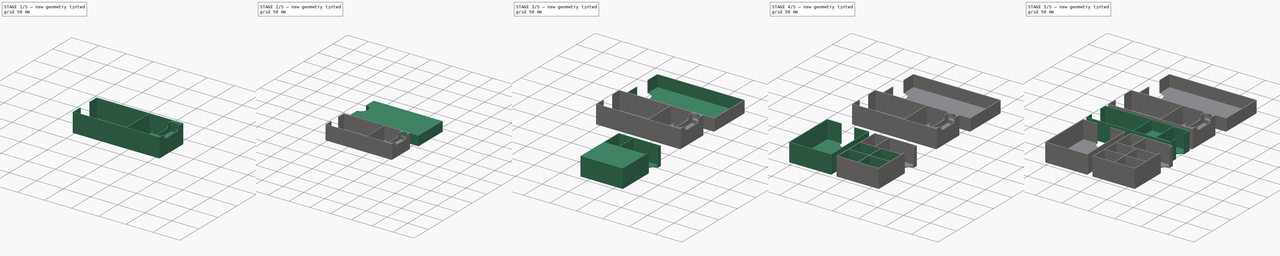
[diagram: build sequence overview — one tinted view per stage of 5, left to right]
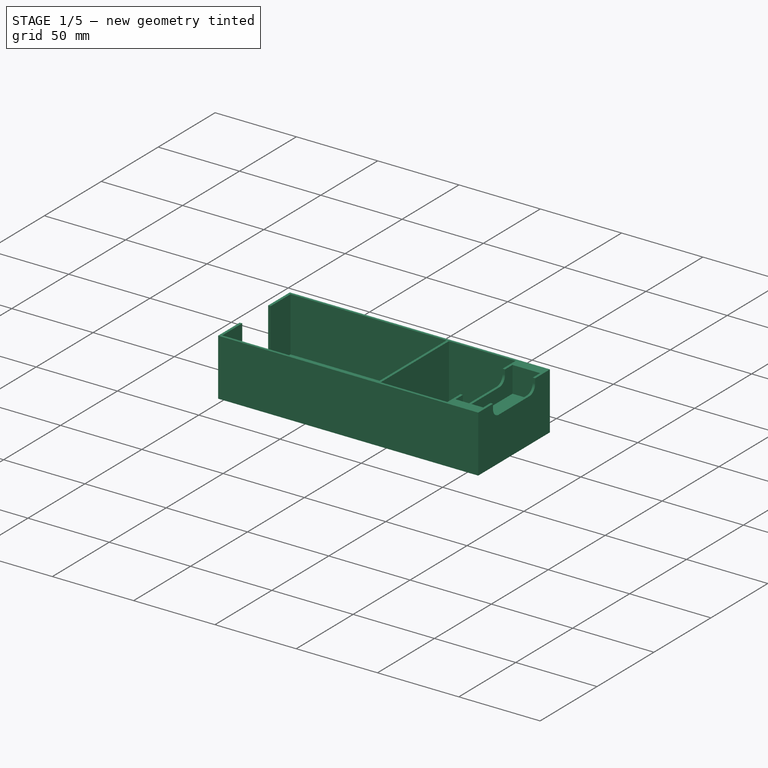
[diagram: stage 1 of 5 — iso view after this stage's code; geometry added in this stage tinted green]
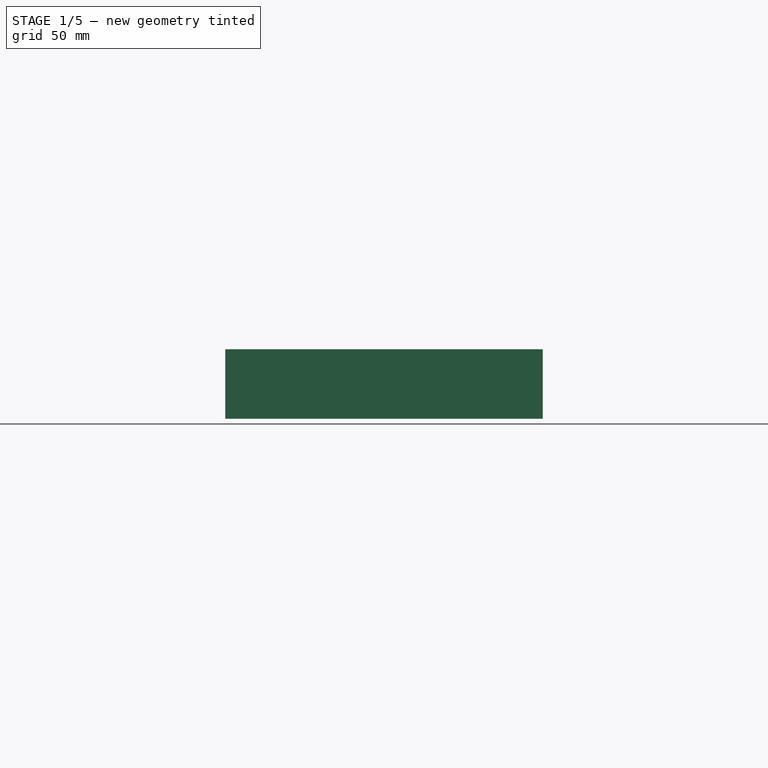
[diagram: stage 1 of 5 — front view after this stage's code; geometry added in this stage tinted green]
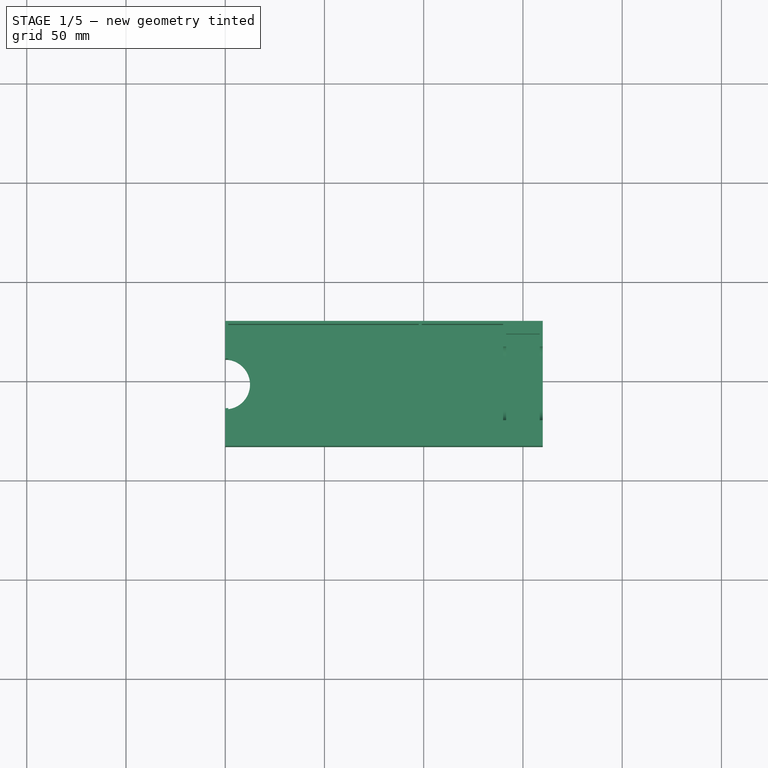
[diagram: stage 1 of 5 — top view after this stage's code; geometry added in this stage tinted green]
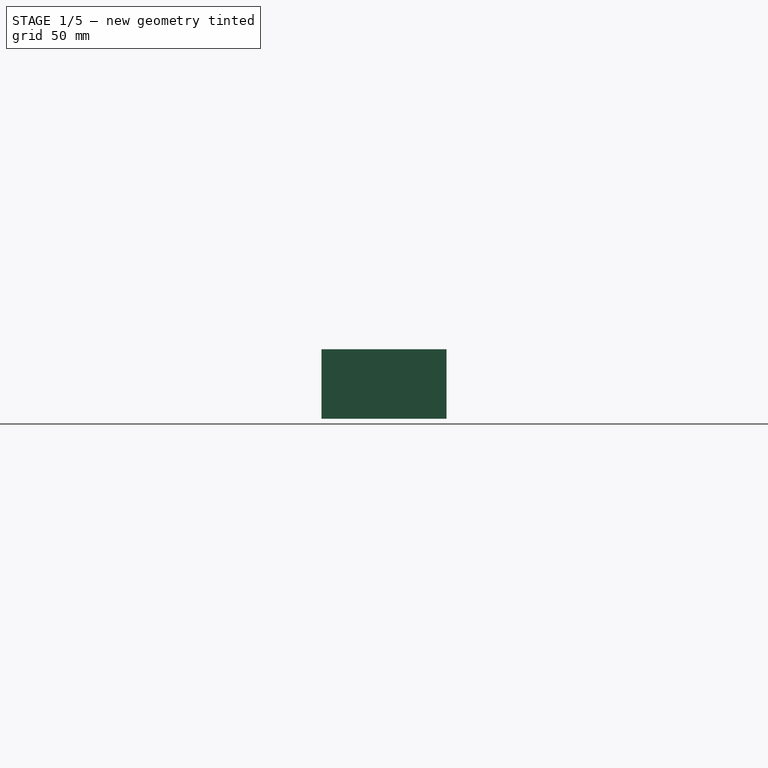
[diagram: stage 1 of 5 — right view after this stage's code; geometry added in this stage tinted green]
FCSTD DOCUMENT  (FreeCAD 0.20R29177 +426 (Git))
Label: Lets Waltz Inserts
License: All rights reserved
LicenseURL: http://en.wikipedia.org/wiki/All_rights_reserved
objects: Sketcher::SketchObject×16, PartDesign::Pocket×13, PartDesign::Fillet×9, PartDesign::Pad×5, PartDesign::Body×5, PartDesign::SubShapeBinder×3, Spreadsheet::Sheet×1
note: 78 computed .brp shape members not serialized (recipe doc carries the construction recipe); baked Part::Feature solids carry a one-line shape summary decoded from their .brp

FEATURE [Sketcher::SketchObject] Sketch003
  FullyConstrained = true
  MapMode = 5
  Support = -> [XY_Plane001]
  expr: Constraints[11] = 60mm + Spreadsheet.wall * 2
  sketch-geometry (6):
    g0: LineSegment StartX=3.8e-15 StartY=-20 StartZ=0 EndX=160 EndY=-20 EndZ=0
    g1: LineSegment StartX=160 StartY=-20 StartZ=0 EndX=160 EndY=-83 EndZ=0
    g2: LineSegment StartX=160 StartY=-83 StartZ=0 EndX=0 EndY=-83 EndZ=0
    g3: LineSegment StartX=3.8e-15 StartY=-83 StartZ=0 EndX=3.8e-15 EndY=-64 EndZ=0
    g4: ArcOfCircle CenterX=0 CenterY=-51.5 CenterZ=0 NormalX=0 NormalY=0 NormalZ=1 AngleXU=0 Radius=12.5 StartAngle=4.71239 EndAngle=7.85398
    g5: LineSegment StartX=3.8e-15 StartY=-39 StartZ=0 EndX=3.8e-15 EndY=-20 EndZ=0
  constraints (18):
    c: Coincident(g0,g1)
    c: Coincident(g1,g2)
    c: Coincident(g2,g3)
    c: Coincident(g5,g0)
    c: Horizontal(g0)
    c: Horizontal(g2)
    c: Vertical(g1)
    c: Vertical(g3)
    c: PointOnObject(g0,g-2)
    c: DistanceX(g2,g2) = 160
    c: DistanceY(g0,g-1) = 20
    c: DistanceY(g1,g1) = 63
    c: Symmetric(g0,g2,g4)
    c: DistanceY(g4,g4) = 25
    c: Coincident(g3,g4)
    c: Coincident(g5,g4)
    c: Vertical(g5)
    c: Vertical(g3,g4)
FEATURE [PartDesign::Pad] Pad001
  Direction = (0,0,1)
  Length = 35
  Length2 = 10
  Profile = -> Sketch003
  ReferenceAxis = -> Sketch003 [N_Axis]
  Type = 0
FEATURE [Sketcher::SketchObject] Sketch004
  ExternalGeometry = -> [Pad001]
  FullyConstrained = true
  MapMode = 5
  Placement = pos=(0,0,35) rot=(0,0,1;0rad)
  Support = -> [Pad001]
  expr: Constraints[10] = Spreadsheet.wall
  expr: Constraints[8] = Spreadsheet.wall
  expr: Constraints[9] = Spreadsheet.wall
  sketch-geometry (4):
    g0: LineSegment StartX=1.5 StartY=-21.5 StartZ=0 EndX=97.5 EndY=-21.5 EndZ=0
    g1: LineSegment StartX=97.5 StartY=-21.5 StartZ=0 EndX=97.5 EndY=-81.5 EndZ=0
    g2: LineSegment StartX=97.5 StartY=-81.5 StartZ=0 EndX=1.5 EndY=-81.5 EndZ=0
    g3: LineSegment StartX=1.5 StartY=-81.5 StartZ=0 EndX=1.5 EndY=-21.5 EndZ=0
  constraints (12):
    c: Coincident(g0,g1)
    c: Coincident(g1,g2)
    c: Coincident(g2,g3)
    c: Coincident(g3,g0)
    c: Horizontal(g0)
    c: Horizontal(g2)
    c: Vertical(g1)
    c: Vertical(g3)
    c: DistanceX(g-3,g0) = 1.5
    c: DistanceY(g0,g-3) = 1.5
    c: DistanceY(g-4,g2) = 1.5
    c: DistanceX(g0,g0) = 96
FEATURE [PartDesign::Pocket] Pocket002
  BaseFeature = -> Pad001
  Direction = (0,0,-1)
  Length = 33.5
  Length2 = 5
  Profile = -> Sketch004
  ReferenceAxis = -> Sketch004 [N_Axis]
  Type = 0
  expr: Length = Spreadsheet.boxdepth
FEATURE [Sketcher::SketchObject] Sketch005
  ExternalGeometry = -> [Pocket002]
  FullyConstrained = true
  MapMode = 5
  Placement = pos=(0,0,35) rot=(0,0,1;0rad)
  Support = -> [Pocket002]
  expr: Constraints[9] = Spreadsheet.wall
  sketch-geometry (6):
    g0: LineSegment StartX=141.5 StartY=-26.5 StartZ=0 EndX=158.5 EndY=-26.5 EndZ=0
    g1: LineSegment StartX=158.5 StartY=-26.5 StartZ=0 EndX=158.5 EndY=-76.5 EndZ=0
    g2: LineSegment StartX=158.5 StartY=-76.5 StartZ=0 EndX=141.5 EndY=-76.5 EndZ=0
    g3: LineSegment StartX=141.5 StartY=-76.5 StartZ=0 EndX=141.5 EndY=-26.5 EndZ=0
    g4: GeomPoint X=160 Y=-51.5 Z=0
    g5: GeomPoint X=158.5 Y=-51.5 Z=0
  constraints (14):
    c: Coincident(g0,g1)
    c: Coincident(g1,g2)
    c: Coincident(g2,g3)
    c: Coincident(g3,g0)
    c: Horizontal(g0)
    c: Horizontal(g2)
    c: Vertical(g1)
    c: Vertical(g3)
    c: DistanceX(g2,g2) = 17
    c: DistanceX(g1,g-3) = 1.5
    c: DistanceY(g1,g1) = 50
    c: Symmetric(g-3,g-3,g4)
    c: Symmetric(g0,g1,g5)
    c: Horizontal(g4,g5)
FEATURE [PartDesign::Pocket] Pocket003
  BaseFeature = -> Pocket002
  Direction = (0,0,-1)
  Length = 16
  Length2 = 5
  Profile = -> Sketch005
  ReferenceAxis = -> Sketch005 [N_Axis]
  Type = 0
FEATURE [Sketcher::SketchObject] Sketch006
  ExternalGeometry = -> [Pocket003]
  FullyConstrained = true
  MapMode = 5
  Placement = pos=(0,0,35) rot=(0,0,1;0rad)
  Support = -> [Pocket003]
  expr: Constraints[11] = Spreadsheet.divider
  expr: Constraints[8] = Spreadsheet.divider
  sketch-geometry (4):
    g0: LineSegment StartX=99 StartY=-21.5 StartZ=0 EndX=140 EndY=-21.5 EndZ=0
    g1: LineSegment StartX=140 StartY=-21.5 StartZ=0 EndX=140 EndY=-81.5 EndZ=0
    g2: LineSegment StartX=140 StartY=-81.5 StartZ=0 EndX=99 EndY=-81.5 EndZ=0
    g3: LineSegment StartX=99 StartY=-81.5 StartZ=0 EndX=99 EndY=-21.5 EndZ=0
  constraints (12):
    c: Coincident(g0,g1)
    c: Coincident(g1,g2)
    c: Coincident(g2,g3)
    c: Coincident(g3,g0)
    c: Horizontal(g0)
    c: Horizontal(g2)
    c: Vertical(g1)
    c: Vertical(g3)
    c: DistanceX(g-3,g0) = 1.5
    c: Horizontal(g0,g-3)
    c: Horizontal(g-3,g2)
    c: DistanceX(g0,g-4) = 1.5
FEATURE [PartDesign::Pocket] Pocket004
  BaseFeature = -> Pocket003
  Direction = (0,0,-1)
  Length = 33.5
  Length2 = 5
  Profile = -> Sketch006
  ReferenceAxis = -> Sketch006 [N_Axis]
  Type = 0
  expr: Length = Spreadsheet.boxdepth
FEATURE [Sketcher::SketchObject] Sketch007
  ExternalGeometry = -> [Pocket004]
  FullyConstrained = true
  MapMode = 5
  Placement = pos=(160,0,0) rot=(0.57735,0.57735,0.57735;2.0944rad)
  Support = -> [Pocket004]
  sketch-geometry (6):
    g0: LineSegment StartX=-70 StartY=35 StartZ=0 EndX=-33 EndY=35 EndZ=0
    g1: LineSegment StartX=-33 StartY=35 StartZ=0 EndX=-33 EndY=32 EndZ=0
    g2: LineSegment StartX=-38 StartY=27 StartZ=0 EndX=-65 EndY=27 EndZ=0
    g3: LineSegment StartX=-70 StartY=32 StartZ=0 EndX=-70 EndY=35 EndZ=0
    g4: ArcOfCircle CenterX=-65 CenterY=32 CenterZ=0 NormalX=0 NormalY=0 NormalZ=1 AngleXU=0 Radius=5 StartAngle=3.14159 EndAngle=4.71239
    g5: ArcOfCircle CenterX=-38 CenterY=32 CenterZ=0 NormalX=0 NormalY=0 NormalZ=1 AngleXU=0 Radius=5 StartAngle=4.71239 EndAngle=6.28319
  constraints (16):
    c: Coincident(g0,g1)
    c: Coincident(g3,g0)
    c: Horizontal(g0)
    c: Horizontal(g2)
    c: Vertical(g1)
    c: Vertical(g3)
    c: PointOnObject(g0,g-3)
    c: Tangent(g2,g4) = 1.5708
    c: Tangent(g3,g4) = 1.5708
    c: Tangent(g1,g5) = 1.5708
    c: Tangent(g2,g5) = 1.5708
    c: Radius(g5) = 5
    c: Equal(g5,g4)
    c: DistanceY(g2,g0) = 8
    c: DistanceX(g0,g-3) = 13
    c: DistanceX(g-3,g0) = 13
FEATURE [PartDesign::Pocket] Pocket005
  BaseFeature = -> Pocket004
  Direction = (-1,0,0)
  Length = 25
  Length2 = 5
  Profile = -> Sketch007
  ReferenceAxis = -> Sketch007 [N_Axis]
  Type = 0
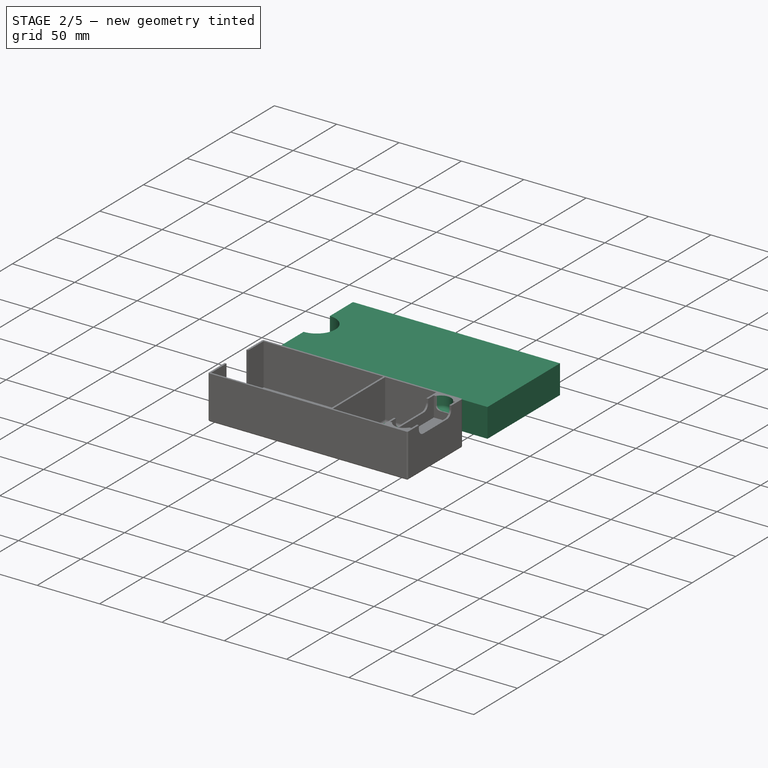
[diagram: stage 2 of 5 — iso view after this stage's code; geometry added in this stage tinted green]
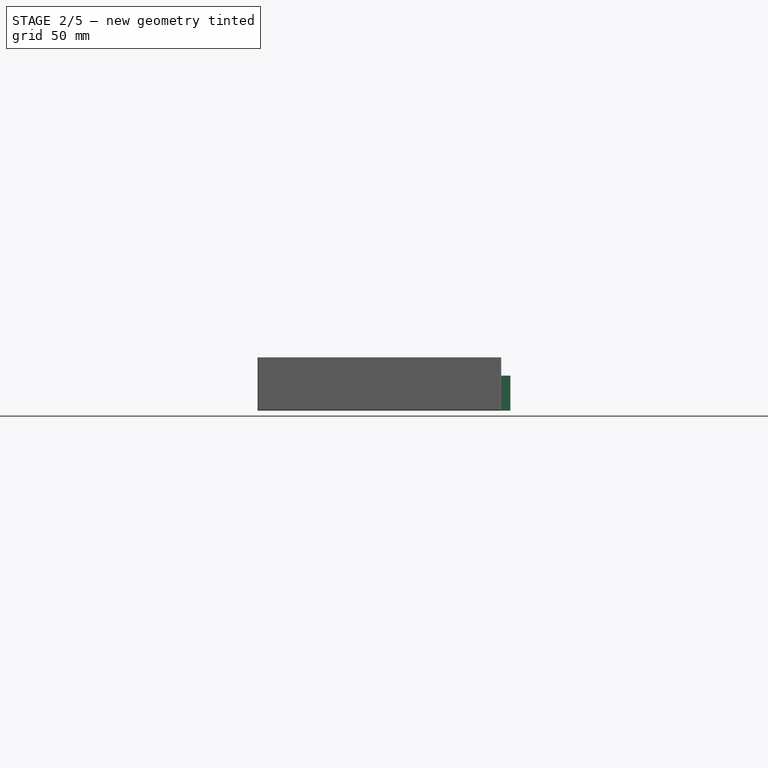
[diagram: stage 2 of 5 — front view after this stage's code; geometry added in this stage tinted green]
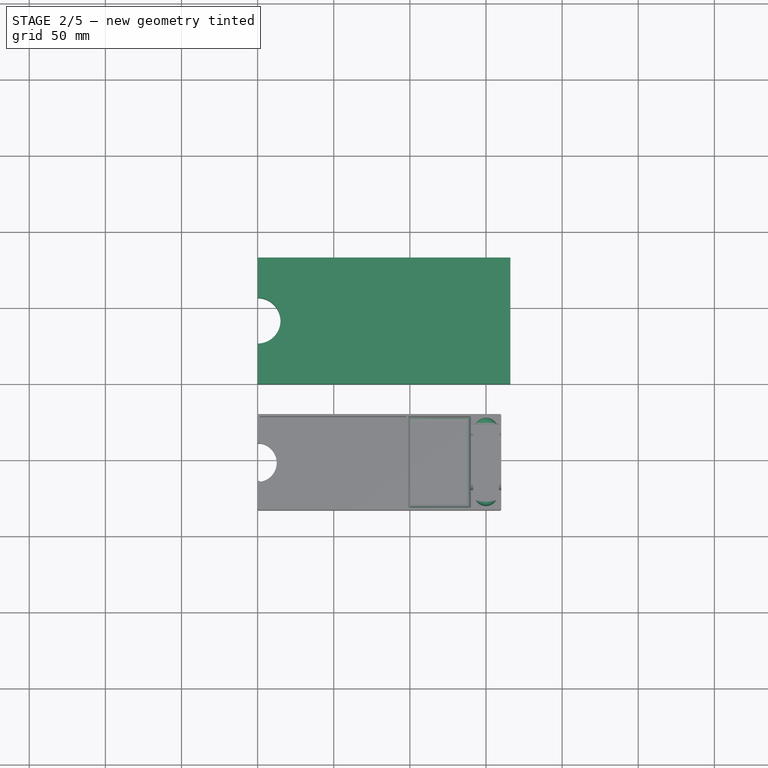
[diagram: stage 2 of 5 — top view after this stage's code; geometry added in this stage tinted green]
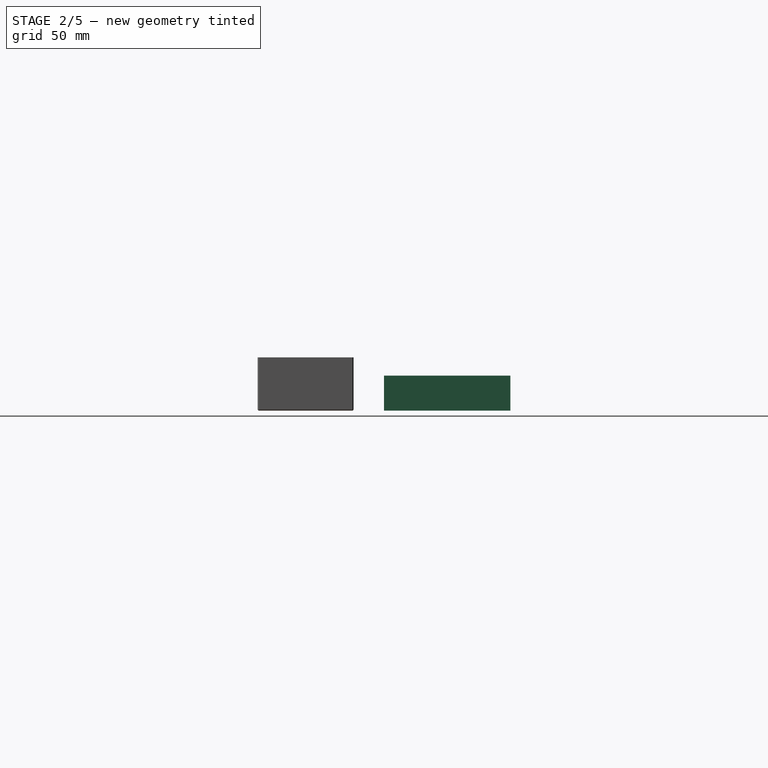
[diagram: stage 2 of 5 — right view after this stage's code; geometry added in this stage tinted green]
FEATURE [Sketcher::SketchObject] Sketch
  FullyConstrained = true
  MapMode = 5
  Support = -> [XY_Plane]
  expr: Constraints[10] = 80mm + Spreadsheet.wall * 2
  expr: Constraints[9] = 163mm + Spreadsheet.wall * 2
  sketch-geometry (4):
    g0: LineSegment StartX=0 StartY=0 StartZ=0 EndX=166 EndY=0 EndZ=0
    g1: LineSegment StartX=166 StartY=0 StartZ=0 EndX=166 EndY=83 EndZ=0
    g2: LineSegment StartX=166 StartY=83 StartZ=0 EndX=0 EndY=83 EndZ=0
    g3: LineSegment StartX=0 StartY=83 StartZ=0 EndX=0 EndY=0 EndZ=0
  constraints (11):
    c: Coincident(g0,g1)
    c: Coincident(g1,g2)
    c: Coincident(g2,g3)
    c: Coincident(g3,g0)
    c: Horizontal(g0)
    c: Horizontal(g2)
    c: Vertical(g1)
    c: Vertical(g3)
    c: Coincident(g-1,g0)
    c: DistanceX(g0,g0) = 166
    c: DistanceY(g1,g1) = 83
FEATURE [PartDesign::Pad] Pad
  Direction = (0,0,1)
  Length = 23
  Length2 = 10
  Profile = -> Sketch
  ReferenceAxis = -> Sketch [N_Axis]
  Type = 0
  expr: Length = Spreadsheet.boxheight - 12mm
FEATURE [Sketcher::SketchObject] Sketch001
  ExternalGeometry = -> [Pad]
  FullyConstrained = true
  MapMode = 5
  Placement = pos=(0,0,23) rot=(0,0,1;0rad)
  Support = -> [Pad]
  sketch-geometry (2):
    g0: ArcOfCircle CenterX=0 CenterY=41.5 CenterZ=0 NormalX=0 NormalY=0 NormalZ=1 AngleXU=0 Radius=15 StartAngle=4.71239 EndAngle=7.85398
    g1: LineSegment StartX=4.6e-15 StartY=56.5 StartZ=0 EndX=-2.8e-15 EndY=26.5 EndZ=0
  constraints (6):
    c: PointOnObject(g0,g-3)
    c: PointOnObject(g0,g-3)
    c: Coincident(g1,g0)
    c: Coincident(g1,g0)
    c: Symmetric(g-3,g-3,g0)
    c: DistanceY(g1,g1) = 30
FEATURE [PartDesign::Pocket] Pocket
  BaseFeature = -> Pad
  Direction = (0,0,-1)
  Length = 25
  Length2 = 5
  Profile = -> Sketch001
  ReferenceAxis = -> Sketch001 [N_Axis]
  Type = 0
FEATURE [Sketcher::SketchObject] Sketch008
  ExternalGeometry = -> [Pocket005]
  FullyConstrained = true
  MapMode = 5
  Placement = pos=(0,0,35) rot=(0,0,1;0rad)
  Support = -> [Pocket005]
  sketch-geometry (5):
    g0: ArcOfCircle CenterX=150 CenterY=-30.5 CenterZ=0 NormalX=0 NormalY=0 NormalZ=1 AngleXU=0 Radius=8 StartAngle=0.523599 EndAngle=2.61799
    g1: ArcOfCircle CenterX=150 CenterY=-72.5 CenterZ=0 NormalX=0 NormalY=0 NormalZ=1 AngleXU=0 Radius=8 StartAngle=3.66519 EndAngle=5.75959
    g2: LineSegment StartX=143.072 StartY=-26.5 StartZ=0 EndX=156.928 EndY=-26.5 EndZ=0
    g3: LineSegment StartX=143.072 StartY=-76.5 StartZ=0 EndX=156.928 EndY=-76.5 EndZ=0
    g4: GeomPoint X=150 Y=-26.5 Z=0
  constraints (15):
    c: PointOnObject(g0,g-3)
    c: PointOnObject(g1,g-4)
    c: PointOnObject(g1,g-4)
    c: Equal(g0,g1)
    c: PointOnObject(g0,g-3)
    c: Radius(g1) = 8
    c: Vertical(g0,g1)
    c: DistanceY(g1,g1) = 4
    c: Coincident(g2,g0)
    c: Coincident(g3,g1)
    c: Coincident(g3,g1)
    c: Coincident(g2,g0)
    c: DistanceY(g0,g0) = 4
    c: Symmetric(g-3,g-3,g4)
    c: Vertical(g4,g0)
FEATURE [PartDesign::Pocket] Pocket006
  BaseFeature = -> Pocket005
  Direction = (0,0,-1)
  Length = 10
  Length2 = 5
  Profile = -> Sketch008
  ReferenceAxis = -> Sketch008 [N_Axis]
  Type = 0
FEATURE [PartDesign::Body] Body  label="Ballrooms"
  Group = -> [Sketch,Pad,Sketch001,Pocket,Sketch016,Pocket013,Fillet]
  Origin = -> Origin
  Tip = -> Fillet
FEATURE [PartDesign::Fillet] Fillet001
  Base = -> Pocket006 [Edge97,Edge70]
  BaseFeature = -> Pocket006
  Radius = 3
  SupportTransform = false
  UseAllEdges = false
FEATURE [PartDesign::Fillet] Fillet002
  Base = -> Fillet001 [Edge59,Edge62,Edge61,Edge91,Edge58,Edge109,Edge94,Edge92,Edge60]
  BaseFeature = -> Fillet001
  Radius = 1
  SupportTransform = false
  UseAllEdges = false
FEATURE [PartDesign::Fillet] Fillet005
  Base = -> Fillet002 [Face48]
  BaseFeature = -> Fillet002
  Radius = 3
  SupportTransform = false
  UseAllEdges = false
FEATURE [PartDesign::Body] Body001  label="Solo"
  Group = -> [Sketch003,Pad001,Sketch004,Pocket002,Sketch005,Pocket003,Sketch006,Pocket004,Sketch007,Pocket005,Sketch008,Pocket006,Fillet001,Fillet002,Fillet005]
  Origin = -> Origin001
  Tip = -> Fillet005
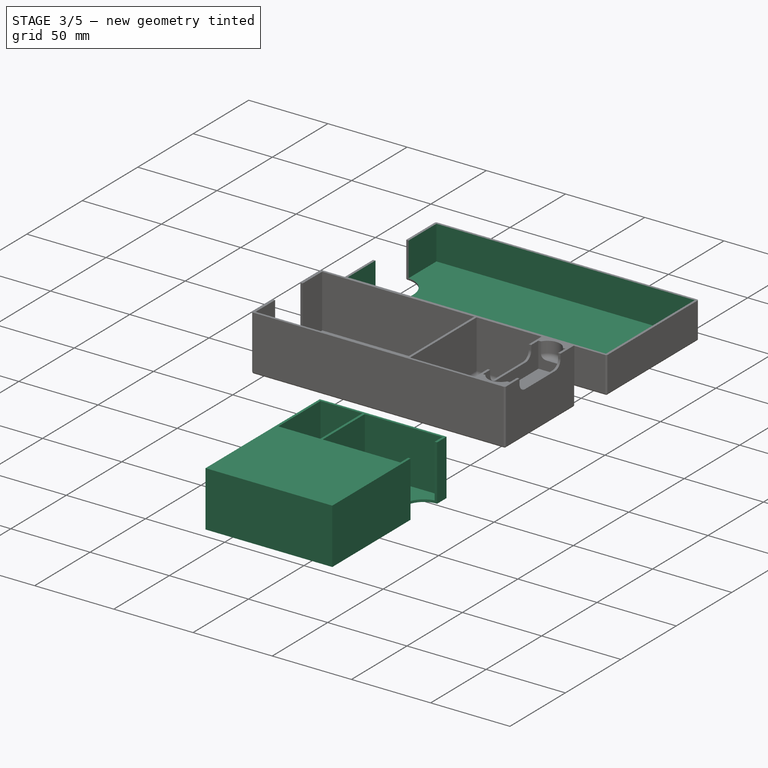
[diagram: stage 3 of 5 — iso view after this stage's code; geometry added in this stage tinted green]
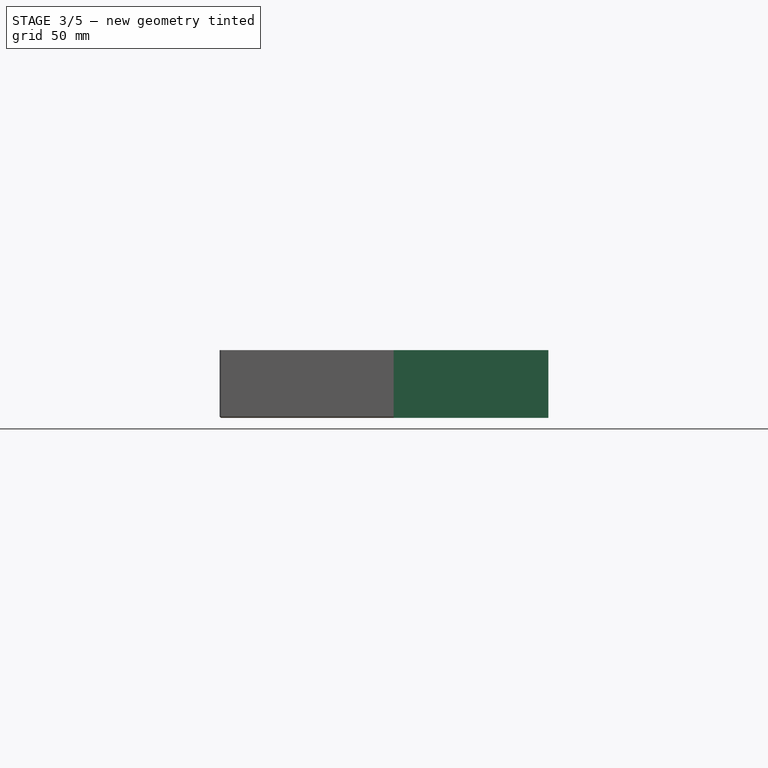
[diagram: stage 3 of 5 — front view after this stage's code; geometry added in this stage tinted green]
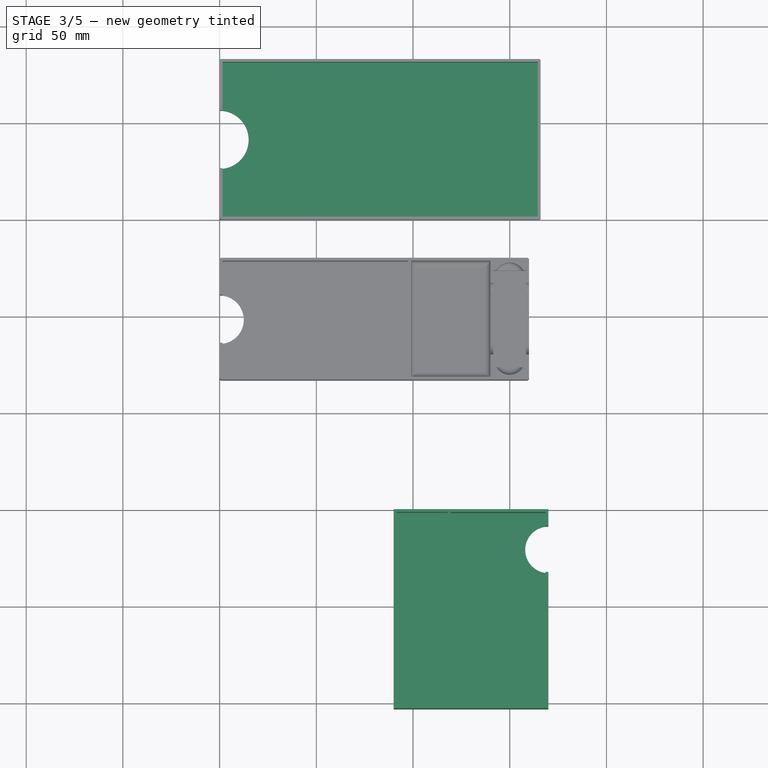
[diagram: stage 3 of 5 — top view after this stage's code; geometry added in this stage tinted green]
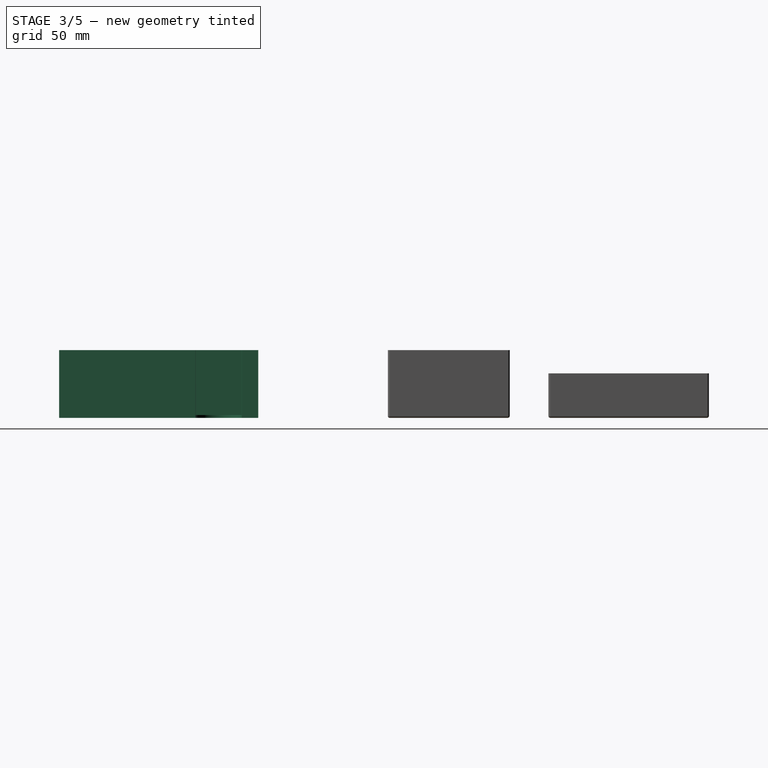
[diagram: stage 3 of 5 — right view after this stage's code; geometry added in this stage tinted green]
FEATURE [Sketcher::SketchObject] Sketch014
  FullyConstrained = true
  MapMode = 5
  Support = -> [XY_Plane004]
  expr: Constraints[18] = 38mm / 2 + Spreadsheet.wall
  expr: Constraints[8] = 160mm - 77mm - Spreadsheet.wall * 2
  expr: Constraints[9] = 100mm + Spreadsheet.wall * 2
  sketch-geometry (6):
    g0: LineSegment StartX=90 StartY=-150 StartZ=0 EndX=170 EndY=-150 EndZ=0
    g1: LineSegment StartX=170 StartY=-150 StartZ=0 EndX=170 EndY=-158.5 EndZ=0
    g2: LineSegment StartX=170 StartY=-253 StartZ=0 EndX=90 EndY=-253 EndZ=0
    g3: LineSegment StartX=90 StartY=-253 StartZ=0 EndX=90 EndY=-150 EndZ=0
    g4: ArcOfCircle CenterX=170 CenterY=-170.5 CenterZ=0 NormalX=0 NormalY=0 NormalZ=1 AngleXU=0 Radius=12 StartAngle=1.5708 EndAngle=4.71239
    g5: LineSegment StartX=170 StartY=-182.5 StartZ=0 EndX=170 EndY=-253 EndZ=0
  constraints (19):
    c: Coincident(g0,g1)
    c: Coincident(g5,g2)
    c: Coincident(g2,g3)
    c: Coincident(g3,g0)
    c: Horizontal(g0)
    c: Horizontal(g2)
    c: Vertical(g1)
    c: Vertical(g3)
    c: DistanceX(g2,g2) = 80
    c: DistanceY(g5,g1) = 103
    c: DistanceY(g0,g-1) = 150
    c: DistanceX(g-1,g0) = 90
    c: PointOnObject(g4,g1)
    c: Coincident(g1,g4)
    c: Coincident(g5,g4)
    c: Vertical(g5)
    c: Vertical(g4,g1)
    c: DistanceY(g4,g1) = 24
    c: DistanceY(g4,g0) = 20.5
FEATURE [PartDesign::Pad] Pad004
  Direction = (0,0,1)
  Length = 35
  Length2 = 10
  Profile = -> Sketch014
  ReferenceAxis = -> Sketch014 [N_Axis]
  Type = 0
  expr: Length = Spreadsheet.boxheight
FEATURE [PartDesign::Body] Body003  label="Module 3"
  Group = -> [Sketch012,Pad003,Sketch013,Pocket009,Fillet006]
  Origin = -> Origin003
  Tip = -> Fillet006
FEATURE [Sketcher::SketchObject] Sketch015
  ExternalGeometry = -> [Pad004]
  FullyConstrained = true
  MapMode = 5
  Placement = pos=(0,0,35) rot=(0,0,1;0rad)
  Support = -> [Pad004]
  expr: Constraints[11] = Spreadsheet.wall
  expr: Constraints[22] = Spreadsheet.divider
  expr: Constraints[23] = Spreadsheet.wall
  expr: Constraints[56] = Spreadsheet.divider
  expr: Constraints[57] = Spreadsheet.wall
  expr: Constraints[58] = Spreadsheet.wall
  expr: Constraints[59] = Spreadsheet.wall
  expr: Constraints[60] = Spreadsheet.divider
  expr: Constraints[69] = Spreadsheet.divider
  expr: Constraints[8] = Spreadsheet.wall
  sketch-geometry (25):
    g0: LineSegment StartX=119.5 StartY=-151.5 StartZ=0 EndX=168.5 EndY=-151.5 EndZ=0
    g1: LineSegment StartX=168.5 StartY=-151.5 StartZ=0 EndX=168.5 EndY=-189.5 EndZ=0
    g2: LineSegment StartX=168.5 StartY=-189.5 StartZ=0 EndX=119.5 EndY=-189.5 EndZ=0
    g3: LineSegment StartX=119.5 StartY=-189.5 StartZ=0 EndX=119.5 EndY=-151.5 EndZ=0
    g4: LineSegment StartX=91.5 StartY=-151.5 StartZ=0 EndX=118 EndY=-151.5 EndZ=0
    g5: LineSegment StartX=118 StartY=-151.5 StartZ=0 EndX=118 EndY=-189.5 EndZ=0
    g6: LineSegment StartX=118 StartY=-189.5 StartZ=0 EndX=91.5 EndY=-189.5 EndZ=0
    g7: LineSegment StartX=91.5 StartY=-189.5 StartZ=0 EndX=91.5 EndY=-151.5 EndZ=0
    g8: LineSegment StartX=91.5 StartY=-191 StartZ=0 EndX=129.25 EndY=-191 EndZ=0
    g9: LineSegment StartX=129.25 StartY=-191 StartZ=0 EndX=129.25 EndY=-220.5 EndZ=0
    g10: LineSegment StartX=129.25 StartY=-220.5 StartZ=0 EndX=91.5 EndY=-220.5 EndZ=0
    g11: LineSegment StartX=91.5 StartY=-220.5 StartZ=0 EndX=91.5 EndY=-191 EndZ=0
    g12: LineSegment StartX=130.75 StartY=-191 StartZ=0 EndX=168.5 EndY=-191 EndZ=0
    g13: LineSegment StartX=168.5 StartY=-191 StartZ=0 EndX=168.5 EndY=-220.5 EndZ=0
    g14: LineSegment StartX=168.5 StartY=-220.5 StartZ=0 EndX=130.75 EndY=-220.5 EndZ=0
    g15: LineSegment StartX=130.75 StartY=-220.5 StartZ=0 EndX=130.75 EndY=-191 EndZ=0
    g16: LineSegment StartX=130.75 StartY=-222 StartZ=0 EndX=168.5 EndY=-222 EndZ=0
    g17: LineSegment StartX=168.5 StartY=-222 StartZ=0 EndX=168.5 EndY=-251.5 EndZ=0
    g18: LineSegment StartX=168.5 StartY=-251.5 StartZ=0 EndX=130.75 EndY=-251.5 EndZ=0
    g19: LineSegment StartX=130.75 StartY=-251.5 StartZ=0 EndX=130.75 EndY=-222 EndZ=0
    g20: LineSegment StartX=91.5 StartY=-222 StartZ=0 EndX=129.25 EndY=-222 EndZ=0
    g21: LineSegment StartX=129.25 StartY=-222 StartZ=0 EndX=129.25 EndY=-251.5 EndZ=0
    g22: LineSegment StartX=129.25 StartY=-251.5 StartZ=0 EndX=91.5 EndY=-251.5 EndZ=0
    g23: LineSegment StartX=91.5 StartY=-251.5 StartZ=0 EndX=91.5 EndY=-222 EndZ=0
    g24: GeomPoint X=130 Y=-221.25 Z=0
  constraints (72):
    c: Coincident(g0,g1)
    c: Coincident(g1,g2)
    c: Coincident(g2,g3)
    c: Coincident(g3,g0)
    c: Horizontal(g0)
    c: Horizontal(g2)
    c: Vertical(g1)
    c: Vertical(g3)
    c: DistanceX(g0,g-3) = 1.5
    c: DistanceX(g0,g0) = 49
    c: DistanceY(g1,g1) = 38
    c: DistanceY(g0,g-3) = 1.5
    c: Coincident(g4,g5)
    c: Coincident(g5,g6)
    c: Coincident(g6,g7)
    c: Coincident(g7,g4)
    c: Horizontal(g4)
    c: Horizontal(g6)
    c: Vertical(g5)
    c: Vertical(g7)
    c: Horizontal(g2,g5)
    c: Horizontal(g4,g0)
    c: DistanceX(g4,g0) = 1.5
    c: DistanceX(g-3,g4) = 1.5
    c: Coincident(g8,g9)
    c: Coincident(g9,g10)
    c: Coincident(g10,g11)
    c: Coincident(g11,g8)
    c: Horizontal(g8)
    c: Horizontal(g10)
    c: Vertical(g9)
    c: Vertical(g11)
    c: Coincident(g12,g13)
    c: Coincident(g13,g14)
    c: Coincident(g14,g15)
    c: Coincident(g15,g12)
    c: Horizontal(g12)
    c: Horizontal(g14)
    c: Vertical(g13)
    c: Vertical(g15)
    c: Coincident(g16,g17)
    c: Coincident(g17,g18)
    c: Coincident(g18,g19)
    c: Coincident(g19,g16)
    c: Horizontal(g16)
    c: Horizontal(g18)
    c: Vertical(g17)
    c: Vertical(g19)
    c: Coincident(g20,g21)
    c: Coincident(g21,g22)
    c: Coincident(g22,g23)
    c: Coincident(g23,g20)
    c: Horizontal(g20)
    c: Horizontal(g22)
    c: Vertical(g21)
    c: Vertical(g23)
    c: DistanceX(g21,g18) = 1.5
    c: DistanceX(g17,g-4) = 1.5
    c: DistanceX(g-4,g22) = 1.5
    c: DistanceY(g-4,g17) = 1.5
    c: DistanceY(g12,g1) = 1.5
    c: Horizontal(g18,g21)
    c: Horizontal(g16,g20)
    c: Horizontal(g14,g9)
    c: Horizontal(g8,g12)
    c: Vertical(g9,g20)
    c: Vertical(g14,g16)
    c: Vertical(g13,g16)
    c: Vertical(g10,g20)
    c: DistanceY(g16,g13) = 1.5
    c: Symmetric(g12,g22,g24)
    c: Symmetric(g20,g14,g24)
FEATURE [PartDesign::SubShapeBinder] Binder
  BindCopyOnChange = 0
  BindMode = 0
  ClaimChildren = false
  Context = -> Body004 [Binder.]
  Fuse = false
  MakeFace = true
  OffsetFill = false
  OffsetIntersection = false
  OffsetJoinType = 0
  OffsetOpenResult = false
  PartialLoad = false
  Relative = true
  Support = -> [Sketch015[Edge4,Edge3,Edge1,Edge2]]
  _Version = 2
FEATURE [PartDesign::Pocket] Pocket010
  BaseFeature = -> Pad004
  Direction = (0,0,-1)
  Length = 33.5
  Length2 = 5
  Profile = -> Binder
  Type = 0
  expr: Length = Spreadsheet.boxdepth
FEATURE [PartDesign::SubShapeBinder] Binder001
  BindCopyOnChange = 0
  BindMode = 0
  ClaimChildren = false
  Context = -> Body004 [Binder001.]
  Fuse = false
  MakeFace = true
  OffsetFill = false
  OffsetIntersection = false
  OffsetJoinType = 0
  OffsetOpenResult = false
  PartialLoad = false
  Relative = true
  Support = -> [Sketch015[Edge6,Edge5,Edge8,Edge7]]
  _Version = 2
FEATURE [PartDesign::Pocket] Pocket011
  BaseFeature = -> Pocket010
  Direction = (0,0,-1)
  Length = 25
  Length2 = 5
  Profile = -> Binder001
  Type = 0
FEATURE [PartDesign::Body] Body004  label="Module 1"
  Group = -> [Sketch014,Pad004,Sketch015,Binder,Pocket010,Binder001,Pocket011,Fillet007,Binder002,Pocket012,Fillet008]
  Origin = -> Origin004
  Tip = -> Fillet008
FEATURE [Spreadsheet::Sheet] Spreadsheet
  cells = A1=Wall; B1(wall)==1.5mm; A2=Divider; B2(divider)==1.5mm; A3=Floor; B3(floor)==1.5mm; A4=Box Height; B4(boxheight)==35mm; A5=Box Depth; B5(boxdepth)==boxheight - floor
FEATURE [Sketcher::SketchObject] Sketch016
  ExternalGeometry = -> [Pocket]
  FullyConstrained = true
  MapMode = 5
  Placement = pos=(0,0,23) rot=(0,0,1;0rad)
  Support = -> [Pocket]
  expr: Constraints[10] = Spreadsheet.wall
  expr: Constraints[11] = Spreadsheet.wall
  expr: Constraints[8] = Spreadsheet.wall
  expr: Constraints[9] = Spreadsheet.wall
  sketch-geometry (4):
    g0: LineSegment StartX=1.5 StartY=81.5 StartZ=0 EndX=164.5 EndY=81.5 EndZ=0
    g1: LineSegment StartX=164.5 StartY=81.5 StartZ=0 EndX=164.5 EndY=1.5 EndZ=0
    g2: LineSegment StartX=164.5 StartY=1.5 StartZ=0 EndX=1.5 EndY=1.5 EndZ=0
    g3: LineSegment StartX=1.5 StartY=1.5 StartZ=0 EndX=1.5 EndY=81.5 EndZ=0
  constraints (12):
    c: Coincident(g0,g1)
    c: Coincident(g1,g2)
    c: Coincident(g2,g3)
    c: Coincident(g3,g0)
    c: Horizontal(g0)
    c: Horizontal(g2)
    c: Vertical(g1)
    c: Vertical(g3)
    c: DistanceX(g1,g-4) = 1.5
    c: DistanceX(g-4,g2) = 1.5
    c: DistanceY(g-4,g1) = 1.5
    c: DistanceY(g0,g-3) = 1.5
FEATURE [PartDesign::Pocket] Pocket013
  BaseFeature = -> Pocket
  Direction = (0,0,-1)
  Length = 21.5
  Length2 = 5
  Profile = -> Sketch016
  ReferenceAxis = -> Sketch016 [N_Axis]
  Type = 0
  expr: Length = Spreadsheet.boxheight - Spreadsheet.floor - 12mm
FEATURE [PartDesign::Fillet] Fillet
  Base = -> Pocket013 [Face4,Edge1,Edge2,Edge27,Edge8]
  BaseFeature = -> Pocket013
  Radius = 1
  SupportTransform = false
  UseAllEdges = false
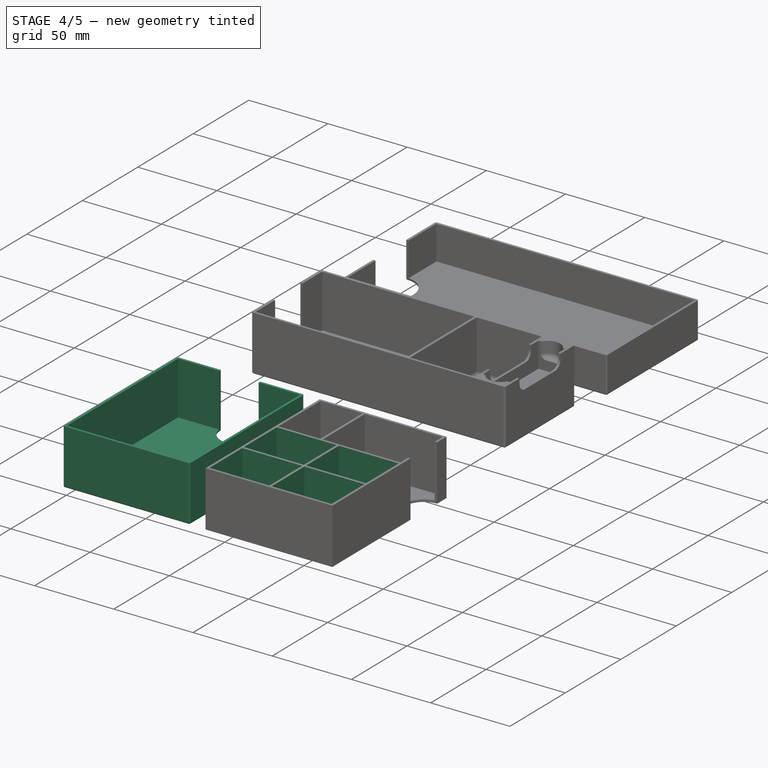
[diagram: stage 4 of 5 — iso view after this stage's code; geometry added in this stage tinted green]
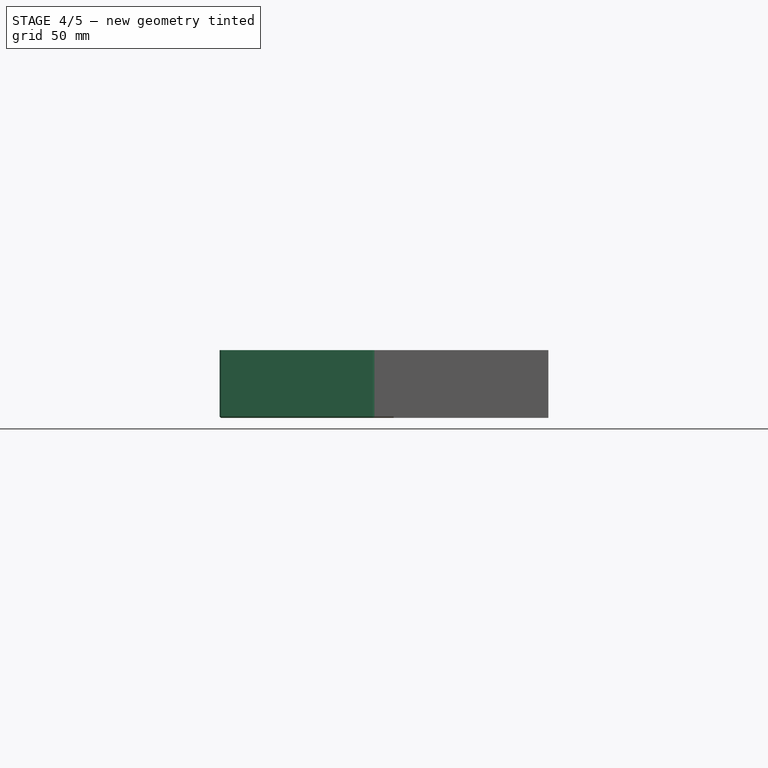
[diagram: stage 4 of 5 — front view after this stage's code; geometry added in this stage tinted green]
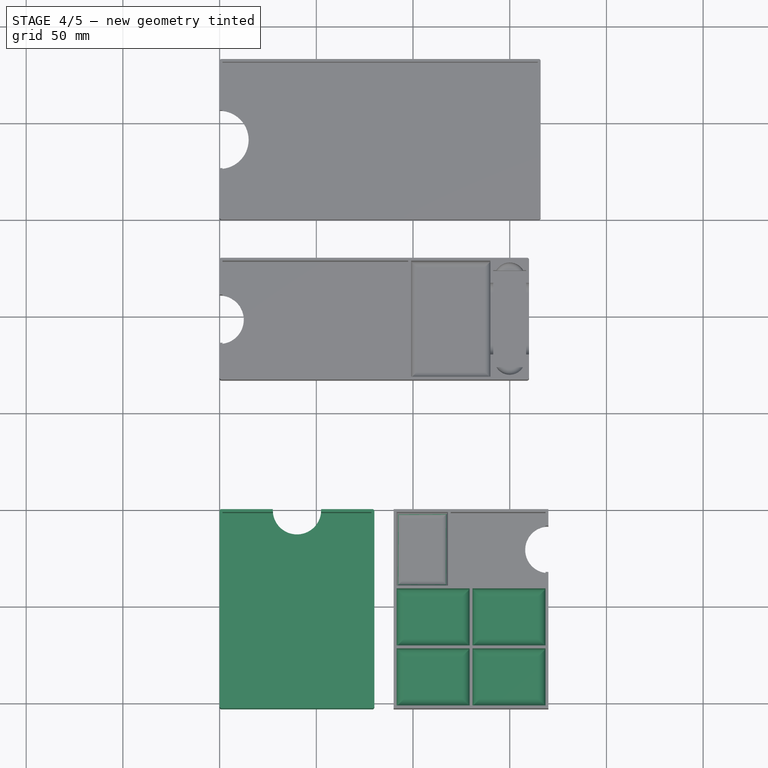
[diagram: stage 4 of 5 — top view after this stage's code; geometry added in this stage tinted green]
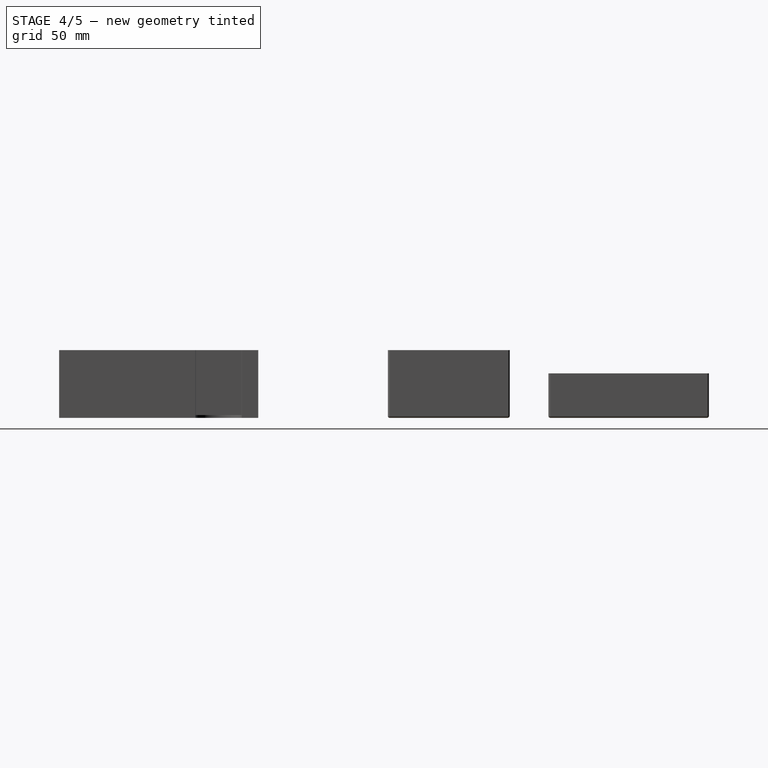
[diagram: stage 4 of 5 — right view after this stage's code; geometry added in this stage tinted green]
FEATURE [PartDesign::Body] Body002  label="Module 24"
  Group = -> [Sketch009,Pad002,Sketch010,Pocket007,Fillet003,Sketch011,Pocket008,Fillet004]
  Origin = -> Origin002
  Tip = -> Fillet004
FEATURE [Sketcher::SketchObject] Sketch012
  FullyConstrained = true
  MapMode = 5
  Support = -> [XY_Plane003]
  expr: Constraints[15] = 77mm + Spreadsheet.wall * 2
  expr: Constraints[16] = 100mm + Spreadsheet.wall * 2
  sketch-geometry (6):
    g0: LineSegment StartX=0 StartY=-150 StartZ=0 EndX=27.5 EndY=-150 EndZ=0
    g1: LineSegment StartX=80 StartY=-150 StartZ=0 EndX=80 EndY=-253 EndZ=0
    g2: LineSegment StartX=80 StartY=-253 StartZ=0 EndX=0 EndY=-253 EndZ=0
    g3: LineSegment StartX=0 StartY=-253 StartZ=0 EndX=0 EndY=-150 EndZ=0
    g4: ArcOfCircle CenterX=40 CenterY=-150 CenterZ=0 NormalX=0 NormalY=0 NormalZ=1 AngleXU=0 Radius=12.5 StartAngle=3.14159 EndAngle=6.28319
    g5: LineSegment StartX=52.5 StartY=-150 StartZ=0 EndX=80 EndY=-150 EndZ=0
  constraints (18):
    c: Coincident(g5,g1)
    c: Coincident(g1,g2)
    c: Coincident(g2,g3)
    c: Coincident(g3,g0)
    c: Horizontal(g0)
    c: Horizontal(g2)
    c: Vertical(g1)
    c: Vertical(g3)
    c: PointOnObject(g0,g-2)
    c: Symmetric(g5,g0,g4)
    c: DistanceX(g4,g4) = 25
    c: Coincident(g0,g4)
    c: Coincident(g5,g4)
    c: Horizontal(g5)
    c: Horizontal(g4,g0)
    c: DistanceX(g2,g2) = 80
    c: DistanceY(g1,g1) = 103
    c: DistanceY(g0,g-1) = 150
FEATURE [PartDesign::Pad] Pad003
  Direction = (0,0,1)
  Length = 35
  Length2 = 10
  Profile = -> Sketch012
  ReferenceAxis = -> Sketch012 [N_Axis]
  Type = 0
  expr: Length = Spreadsheet.boxheight
FEATURE [Sketcher::SketchObject] Sketch013
  ExternalGeometry = -> [Pad003]
  FullyConstrained = true
  MapMode = 5
  Placement = pos=(0,0,35) rot=(0,0,1;0rad)
  Support = -> [Pad003]
  expr: Constraints[10] = Spreadsheet.wall
  expr: Constraints[11] = Spreadsheet.wall
  expr: Constraints[8] = Spreadsheet.wall
  expr: Constraints[9] = Spreadsheet.wall
  sketch-geometry (4):
    g0: LineSegment StartX=1.5 StartY=-151.5 StartZ=0 EndX=78.5 EndY=-151.5 EndZ=0
    g1: LineSegment StartX=78.5 StartY=-151.5 StartZ=0 EndX=78.5 EndY=-251.5 EndZ=0
    g2: LineSegment StartX=78.5 StartY=-251.5 StartZ=0 EndX=1.5 EndY=-251.5 EndZ=0
    g3: LineSegment StartX=1.5 StartY=-251.5 StartZ=0 EndX=1.5 EndY=-151.5 EndZ=0
  constraints (12):
    c: Coincident(g0,g1)
    c: Coincident(g1,g2)
    c: Coincident(g2,g3)
    c: Coincident(g3,g0)
    c: Horizontal(g0)
    c: Horizontal(g2)
    c: Vertical(g1)
    c: Vertical(g3)
    c: DistanceX(g-3,g0) = 1.5
    c: DistanceX(g1,g-4) = 1.5
    c: DistanceY(g0,g-4) = 1.5
    c: DistanceY(g-4,g1) = 1.5
FEATURE [PartDesign::Pocket] Pocket009
  BaseFeature = -> Pad003
  Direction = (0,0,-1)
  Length = 33.5
  Length2 = 5
  Profile = -> Sketch013
  ReferenceAxis = -> Sketch013 [N_Axis]
  Type = 0
  expr: Length = Spreadsheet.boxdepth
FEATURE [PartDesign::Fillet] Fillet006
  Base = -> Pocket009 [Edge5,Edge1,Edge26,Edge27,Face4]
  BaseFeature = -> Pocket009
  Radius = 1
  SupportTransform = false
  UseAllEdges = false
FEATURE [PartDesign::Fillet] Fillet007
  Base = -> Pocket011 [Face19]
  BaseFeature = -> Pocket011
  Radius = 3
  SupportTransform = false
  UseAllEdges = false
FEATURE [PartDesign::SubShapeBinder] Binder002
  BindCopyOnChange = 0
  BindMode = 0
  ClaimChildren = false
  Context = -> Body004 [Binder002.]
  Fuse = false
  MakeFace = true
  OffsetFill = false
  OffsetIntersection = false
  OffsetJoinType = 0
  OffsetOpenResult = false
  PartialLoad = false
  Relative = true
  Support = -> [Sketch015[Edge22,Edge20,Edge17,Edge15,Edge16,Edge10,Edge11,Edge21]]
  _Version = 2
FEATURE [PartDesign::Pocket] Pocket012
  BaseFeature = -> Fillet007
  Direction = (0,0,-1)
  Length = 25
  Length2 = 5
  Profile = -> Binder002
  Type = 0
FEATURE [PartDesign::Fillet] Fillet008
  Base = -> Pocket012 [Face43,Face42,Face40,Face41]
  BaseFeature = -> Pocket012
  Radius = 4
  SupportTransform = false
  UseAllEdges = false
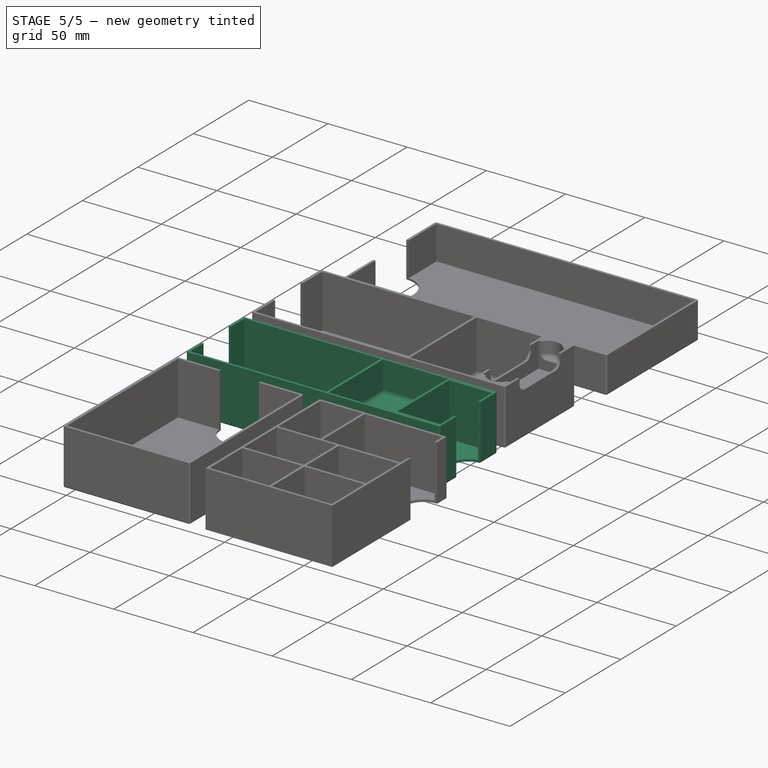
[diagram: stage 5 of 5 — iso view after this stage's code; geometry added in this stage tinted green]
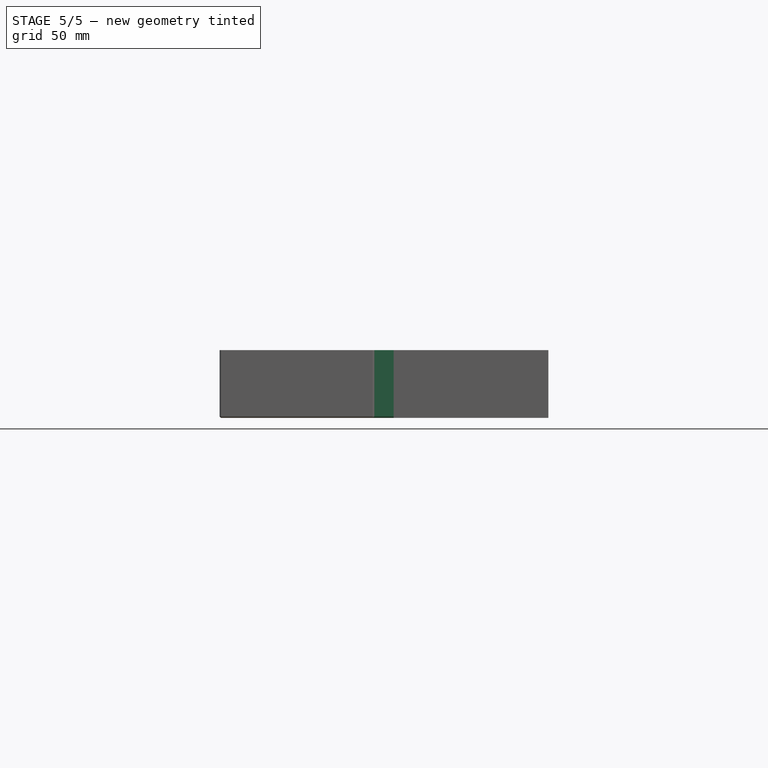
[diagram: stage 5 of 5 — front view after this stage's code; geometry added in this stage tinted green]
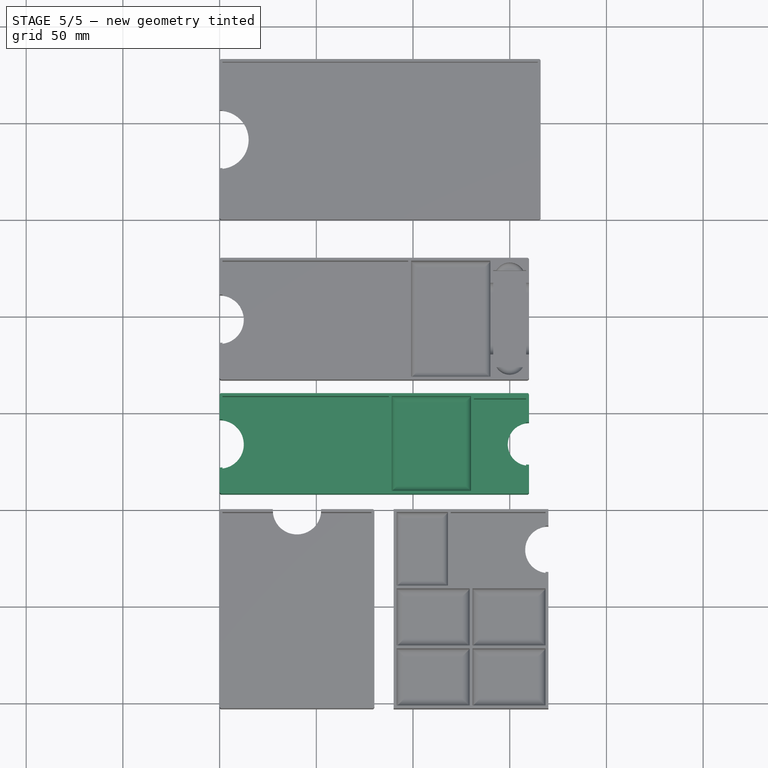
[diagram: stage 5 of 5 — top view after this stage's code; geometry added in this stage tinted green]
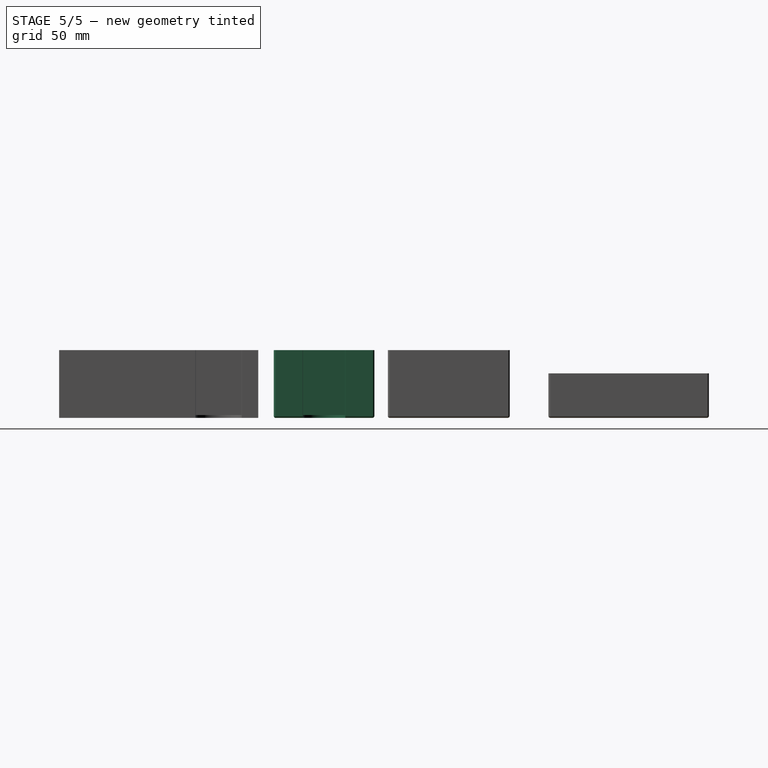
[diagram: stage 5 of 5 — right view after this stage's code; geometry added in this stage tinted green]
FEATURE [Sketcher::SketchObject] Sketch009
  FullyConstrained = true
  MapMode = 5
  Support = -> [XY_Plane002]
  expr: Constraints[9] = 49mm + Spreadsheet.wall * 2
  sketch-geometry (8):
    g0: LineSegment StartX=0 StartY=-90 StartZ=0 EndX=160 EndY=-90 EndZ=0
    g1: LineSegment StartX=160 StartY=-90 StartZ=0 EndX=160 EndY=-105 EndZ=0
    g2: LineSegment StartX=160 StartY=-142 StartZ=0 EndX=0 EndY=-142 EndZ=0
    g3: LineSegment StartX=0 StartY=-142 StartZ=0 EndX=0 EndY=-128.5 EndZ=0
    g4: ArcOfCircle CenterX=0 CenterY=-116 CenterZ=0 NormalX=0 NormalY=0 NormalZ=1 AngleXU=0 Radius=12.5 StartAngle=4.71239 EndAngle=7.85398
    g5: LineSegment StartX=0 StartY=-103.5 StartZ=0 EndX=0 EndY=-90 EndZ=0
    g6: ArcOfCircle CenterX=160 CenterY=-116 CenterZ=0 NormalX=0 NormalY=0 NormalZ=1 AngleXU=0 Radius=11 StartAngle=1.5708 EndAngle=4.71239
    g7: LineSegment StartX=160 StartY=-127 StartZ=0 EndX=160 EndY=-142 EndZ=0
  constraints (24):
    c: Coincident(g0,g1)
    c: Coincident(g7,g2)
    c: Coincident(g2,g3)
    c: Coincident(g5,g0)
    c: Horizontal(g0)
    c: Horizontal(g2)
    c: Vertical(g1)
    c: Vertical(g3)
    c: PointOnObject(g0,g-2)
    c: DistanceY(g7,g1) = 52
    c: DistanceX(g2,g2) = 160
    c: Symmetric(g0,g2,g4)
    c: DistanceY(g4,g4) = 25
    c: Coincident(g3,g4)
    c: Coincident(g5,g4)
    c: DistanceY(g0,g-1) = 90
    c: Vertical(g4,g3)
    c: Vertical(g5)
    c: Symmetric(g0,g7,g6)
    c: DistanceY(g6,g6) = 22
    c: Coincident(g1,g6)
    c: Coincident(g7,g6)
    c: Vertical(g7)
    c: Vertical(g6,g1)
FEATURE [PartDesign::Pad] Pad002
  Direction = (0,0,1)
  Length = 35
  Length2 = 10
  Profile = -> Sketch009
  ReferenceAxis = -> Sketch009 [N_Axis]
  Type = 0
  expr: Length = Spreadsheet.boxheight
FEATURE [Sketcher::SketchObject] Sketch010
  ExternalGeometry = -> [Pad002]
  FullyConstrained = true
  MapMode = 5
  Placement = pos=(0,0,35) rot=(0,0,1;0rad)
  Support = -> [Pad002]
  expr: Constraints[16] = Spreadsheet.wall
  expr: Constraints[17] = Spreadsheet.wall
  expr: Constraints[20] = Spreadsheet.wall
  expr: Constraints[21] = Spreadsheet.wall
  sketch-geometry (10):
    g0: LineSegment StartX=1.5 StartY=-91.5 StartZ=0 EndX=87.5 EndY=-91.5 EndZ=0
    g1: LineSegment StartX=87.5 StartY=-91.5 StartZ=0 EndX=87.5 EndY=-140.5 EndZ=0
    g2: LineSegment StartX=87.5 StartY=-140.5 StartZ=0 EndX=1.5 EndY=-140.5 EndZ=0
    g3: LineSegment StartX=1.5 StartY=-140.5 StartZ=0 EndX=1.5 EndY=-91.5 EndZ=0
    g4: LineSegment StartX=131.5 StartY=-92.75 StartZ=0 EndX=158.5 EndY=-92.75 EndZ=0
    g5: LineSegment StartX=158.5 StartY=-92.75 StartZ=0 EndX=158.5 EndY=-139.25 EndZ=0
    g6: LineSegment StartX=158.5 StartY=-139.25 StartZ=0 EndX=131.5 EndY=-139.25 EndZ=0
    g7: LineSegment StartX=131.5 StartY=-139.25 StartZ=0 EndX=131.5 EndY=-92.75 EndZ=0
    g8: GeomPoint X=158.5 Y=-116 Z=0
    g9: GeomPoint X=160 Y=-116 Z=0
  constraints (26):
    c: Coincident(g0,g1)
    c: Coincident(g1,g2)
    c: Coincident(g2,g3)
    c: Coincident(g3,g0)
    c: Horizontal(g0)
    c: Horizontal(g2)
    c: Vertical(g1)
    c: Vertical(g3)
    c: Coincident(g4,g5)
    c: Coincident(g5,g6)
    c: Coincident(g6,g7)
    c: Coincident(g7,g4)
    c: Horizontal(g4)
    c: Horizontal(g6)
    c: Vertical(g5)
    c: Vertical(g7)
    c: DistanceX(g-3,g0) = 1.5
    c: DistanceX(g5,g-4) = 1.5
    c: DistanceX(g6,g6) = 27
    c: DistanceX(g2,g2) = 86
    c: DistanceY(g0,g-3) = 1.5
    c: DistanceY(g-4,g2) = 1.5
    c: DistanceY(g5,g5) = 46.5
    c: Symmetric(g-3,g-4,g9)
    c: Symmetric(g4,g5,g8)
    c: Horizontal(g9,g8)
FEATURE [PartDesign::Pocket] Pocket007
  BaseFeature = -> Pad002
  Direction = (0,0,-1)
  Length = 33.5
  Length2 = 5
  Profile = -> Sketch010
  ReferenceAxis = -> Sketch010 [N_Axis]
  Type = 0
  expr: Length = Spreadsheet.boxdepth
FEATURE [PartDesign::Fillet] Fillet003
  Base = -> Pocket007 [Edge42,Edge14,Edge6,Edge1,Edge3,Edge13,Edge12,Edge9,Edge41,Edge2]
  BaseFeature = -> Pocket007
  Radius = 1
  SupportTransform = false
  UseAllEdges = false
FEATURE [Sketcher::SketchObject] Sketch011
  ExternalGeometry = -> [Fillet003]
  FullyConstrained = true
  MapMode = 5
  Placement = pos=(0,0,35) rot=(0,0,1;0rad)
  Support = -> [Fillet003]
  sketch-geometry (4):
    g0: LineSegment StartX=89 StartY=-91.5 StartZ=0 EndX=130 EndY=-91.5 EndZ=0
    g1: LineSegment StartX=130 StartY=-91.5 StartZ=0 EndX=130 EndY=-140.5 EndZ=0
    g2: LineSegment StartX=130 StartY=-140.5 StartZ=0 EndX=89 EndY=-140.5 EndZ=0
    g3: LineSegment StartX=89 StartY=-140.5 StartZ=0 EndX=89 EndY=-91.5 EndZ=0
  constraints (12):
    c: Coincident(g0,g1)
    c: Coincident(g1,g2)
    c: Coincident(g2,g3)
    c: Coincident(g3,g0)
    c: Horizontal(g0)
    c: Horizontal(g2)
    c: Vertical(g1)
    c: Vertical(g3)
    c: DistanceX(g-3,g0) = 1.5
    c: DistanceX(g0,g-4) = 1.5
    c: Horizontal(g0,g-3)
    c: Horizontal(g-3,g2)
FEATURE [PartDesign::Pocket] Pocket008
  BaseFeature = -> Fillet003
  Direction = (0,0,-1)
  Length = 20
  Length2 = 5
  Profile = -> Sketch011
  ReferenceAxis = -> Sketch011 [N_Axis]
  Type = 0
FEATURE [PartDesign::Fillet] Fillet004
  Base = -> Pocket008 [Face41]
  BaseFeature = -> Pocket008
  Radius = 3
  SupportTransform = false
  UseAllEdges = false
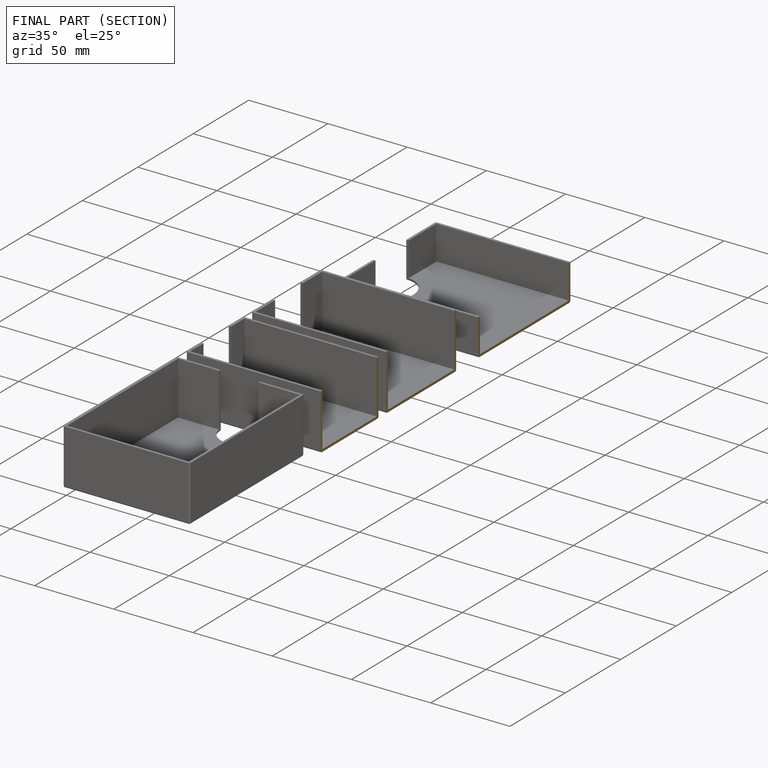
[diagram: finished part — half-section view (interior)]
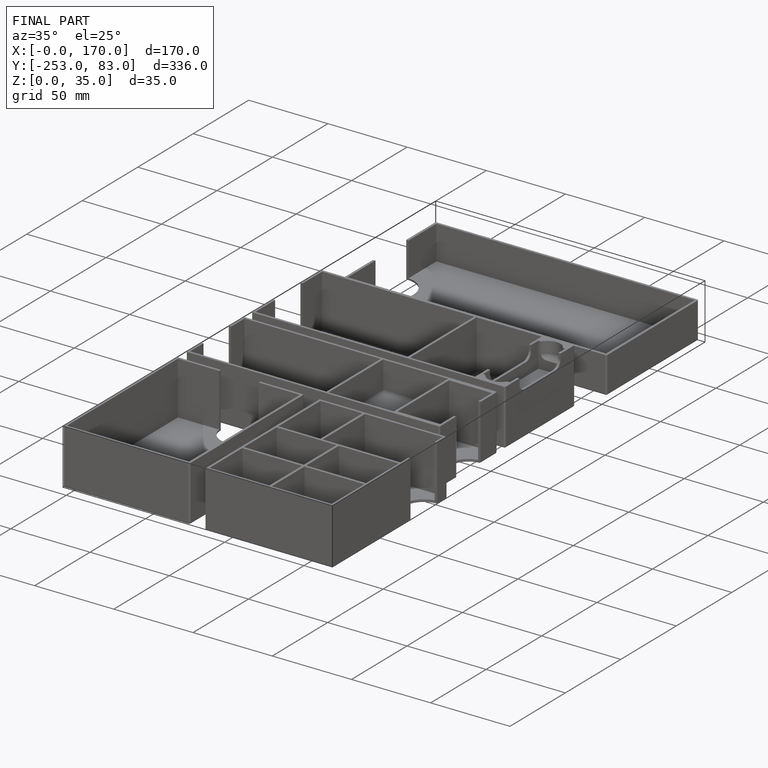
[diagram: finished part — iso view with bounding-box wireframe]
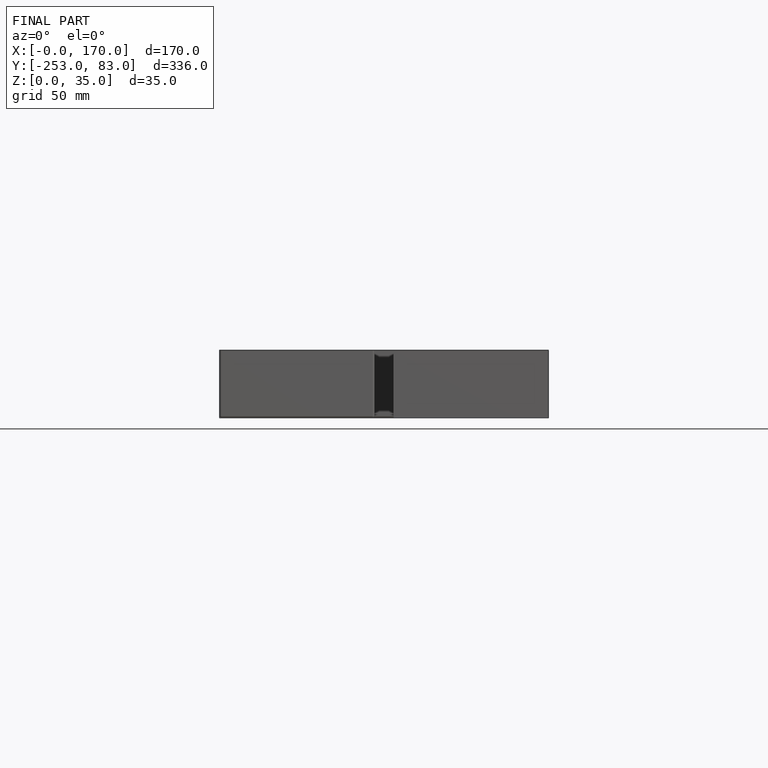
[diagram: finished part — front view with bounding-box wireframe]
